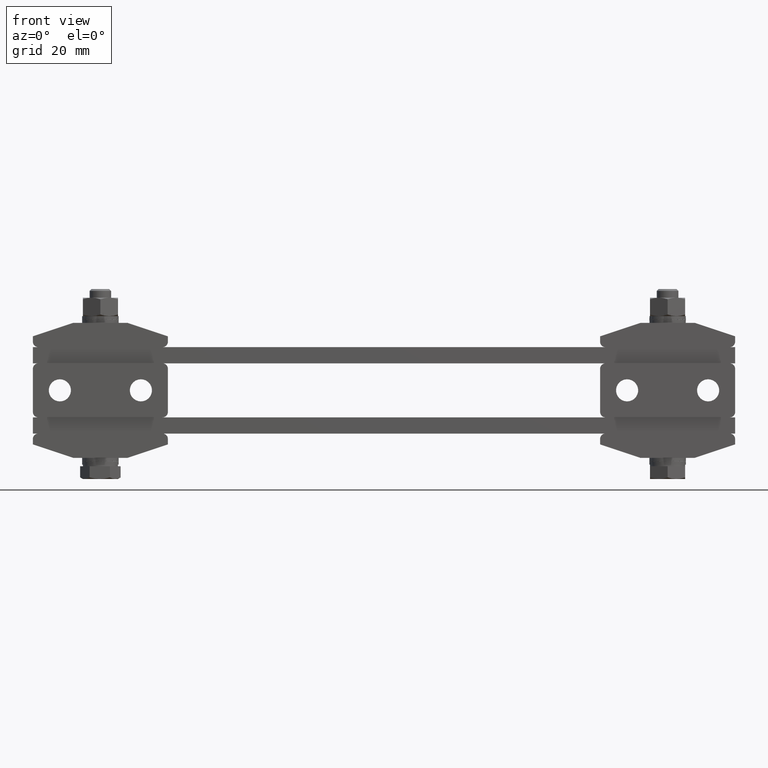
[diagram: clean part render]
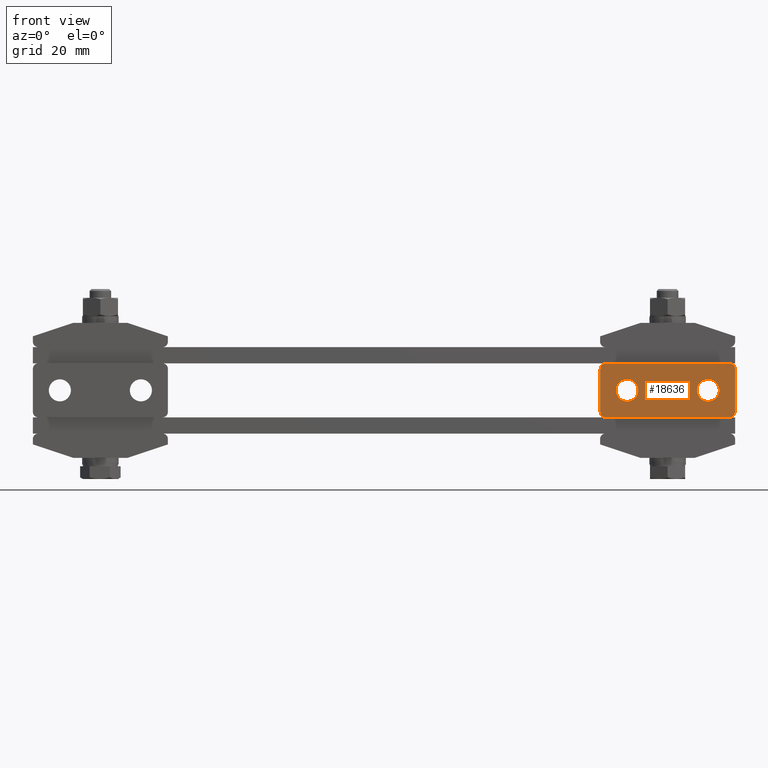
[diagram: same view with one face highlighted and labeled with its STEP entity id]
A machine part, front view. The second image highlights one B-rep face of the part: STEP entity #18636.
In plain terms, the highlighted planar face has unit normal (0, 1, -0).
Its self-contained STEP definition (entity closure, byte-faithful):
#175 = ORIENTED_EDGE ( 'NONE', *, *, #10873, .T. ) ;
#369 = ORIENTED_EDGE ( 'NONE', *, *, #1183, .T. ) ;
#479 = DIRECTION ( 'NONE',  ( 0.0000000000000000000, 0.0000000000000000000, 1.000000000000000000 ) ) ;
#481 = VECTOR ( 'NONE', #4388, 1000.000000000000000 ) ;
#524 = CIRCLE ( 'NONE', #18705, 2.000000000000000000 ) ;
#610 = VERTEX_POINT ( 'NONE', #5053 ) ;
#819 = ORIENTED_EDGE ( 'NONE', *, *, #11375, .T. ) ;
#921 = EDGE_CURVE ( 'NONE', #2988, #14404, #524, .T. ) ;
#1079 = CARTESIAN_POINT ( 'NONE',  ( 80.00000000000000000, -15.50000000000000000, 6.000000000000000000 ) ) ;
#1183 = EDGE_CURVE ( 'NONE', #5373, #2988, #5883, .T. ) ;
#1312 = DIRECTION ( 'NONE',  ( 0.0000000000000000000, 0.0000000000000000000, 1.000000000000000000 ) ) ;
#1361 = ORIENTED_EDGE ( 'NONE', *, *, #20297, .T. ) ;
#1375 = CIRCLE ( 'NONE', #15421, 2.000000000000001800 ) ;
#1602 = EDGE_CURVE ( 'NONE', #610, #17997, #12533, .T. ) ;
#1680 = FACE_BOUND ( 'NONE', #7288, .T. ) ;
#1763 = CIRCLE ( 'NONE', #18886, 4.099999999999999600 ) ;
#1792 = DIRECTION ( 'NONE',  ( 1.000000000000000000, 4.440892098500620200E-016, 0.0000000000000000000 ) ) ;
#1844 = CARTESIAN_POINT ( 'NONE',  ( 80.00000000000000000, -15.50000000000000000, 8.000000000000000000 ) ) ;
#1903 = DIRECTION ( 'NONE',  ( 4.440892098500625200E-016, 1.000000000000000000, 0.0000000000000000000 ) ) ;
#1924 = EDGE_CURVE ( 'NONE', #2547, #9847, #13575, .T. ) ;
#2547 = VERTEX_POINT ( 'NONE', #9001 ) ;
#2565 = CARTESIAN_POINT ( 'NONE',  ( 80.00000000000000000, -15.50000000000000000, 24.00000000000000000 ) ) ;
#2591 = AXIS2_PLACEMENT_3D ( 'NONE', #7696, #7765, #1312 ) ;
#2611 = ORIENTED_EDGE ( 'NONE', *, *, #13438, .T. ) ;
#2679 = ORIENTED_EDGE ( 'NONE', *, *, #20875, .T. ) ;
#2751 = DIRECTION ( 'NONE',  ( 0.0000000000000000000, 0.0000000000000000000, 1.000000000000000000 ) ) ;
#2828 = EDGE_CURVE ( 'NONE', #6930, #4774, #13519, .T. ) ;
#2890 = DIRECTION ( 'NONE',  ( -4.440892098500625200E-016, -1.000000000000000000, -0.0000000000000000000 ) ) ;
#2937 = CARTESIAN_POINT ( 'NONE',  ( 82.00000000000000000, -15.50000000000000000, 6.000000000000000000 ) ) ;
#2965 = FACE_BOUND ( 'NONE', #8253, .T. ) ;
#2988 = VERTEX_POINT ( 'NONE', #1844 ) ;
#3037 = LINE ( 'NONE', #1079, #481 ) ;
#3276 = DIRECTION ( 'NONE',  ( 0.0000000000000000000, 0.0000000000000000000, -1.000000000000000000 ) ) ;
#3645 = VERTEX_POINT ( 'NONE', #10000 ) ;
#3718 = DIRECTION ( 'NONE',  ( 0.0000000000000000000, 0.0000000000000000000, 1.000000000000000000 ) ) ;
#3868 = CIRCLE ( 'NONE', #9642, 4.099999999999999600 ) ;
#3914 = CARTESIAN_POINT ( 'NONE',  ( 120.0000000000000000, -15.50000000000000000, 16.00000000000000000 ) ) ;
#4388 = DIRECTION ( 'NONE',  ( 1.000000000000000000, 4.440892098500620200E-016, 0.0000000000000000000 ) ) ;
#4774 = VERTEX_POINT ( 'NONE', #7346 ) ;
#5041 = AXIS2_PLACEMENT_3D ( 'NONE', #20240, #8843, #479 ) ;
#5053 = CARTESIAN_POINT ( 'NONE',  ( 82.00000000000000000, -15.50000000000000000, 26.00000000000000000 ) ) ;
#5373 = VERTEX_POINT ( 'NONE', #2565 ) ;
#5883 = LINE ( 'NONE', #10554, #15662 ) ;
#5885 = CARTESIAN_POINT ( 'NONE',  ( 128.0000000000000000, -15.50000000000000000, 26.00000000000000000 ) ) ;
#6496 = CARTESIAN_POINT ( 'NONE',  ( 130.0000000000000000, -15.50000000000000000, 26.00000000000000000 ) ) ;
#6511 = CARTESIAN_POINT ( 'NONE',  ( 130.0000000000000000, -15.50000000000000000, 24.00000000000000000 ) ) ;
#6930 = VERTEX_POINT ( 'NONE', #6511 ) ;
#7288 = EDGE_LOOP ( 'NONE', ( #2611, #11950 ) ) ;
#7346 = CARTESIAN_POINT ( 'NONE',  ( 130.0000000000000000, -15.50000000000000000, 8.000000000000000000 ) ) ;
#7359 = CARTESIAN_POINT ( 'NONE',  ( 82.00000000000000000, -15.50000000000000000, 8.000000000000000000 ) ) ;
#7696 = CARTESIAN_POINT ( 'NONE',  ( 120.0000000000000000, -15.50000000000000000, 16.00000000000000000 ) ) ;
#7765 = DIRECTION ( 'NONE',  ( 4.440892098500625200E-016, 1.000000000000000000, 0.0000000000000000000 ) ) ;
#7931 = EDGE_CURVE ( 'NONE', #610, #5373, #1375, .T. ) ;
#8253 = EDGE_LOOP ( 'NONE', ( #175, #819 ) ) ;
#8843 = DIRECTION ( 'NONE',  ( -4.440892098500625200E-016, -1.000000000000000000, -0.0000000000000000000 ) ) ;
#8888 = CARTESIAN_POINT ( 'NONE',  ( 128.0000000000000000, -15.50000000000000000, 24.00000000000000000 ) ) ;
#9001 = CARTESIAN_POINT ( 'NONE',  ( 120.0000000000000000, -15.50000000000000000, 11.90000000000000000 ) ) ;
#9642 = AXIS2_PLACEMENT_3D ( 'NONE', #16975, #16911, #3718 ) ;
#9771 = ORIENTED_EDGE ( 'NONE', *, *, #921, .T. ) ;
#9847 = VERTEX_POINT ( 'NONE', #16675 ) ;
#10000 = CARTESIAN_POINT ( 'NONE',  ( 90.00000000000000000, -15.50000000000000000, 20.10000000000000100 ) ) ;
#10052 = PLANE ( 'NONE',  #19978 ) ;
#10137 = DIRECTION ( 'NONE',  ( 0.0000000000000000000, 0.0000000000000000000, 1.000000000000000000 ) ) ;
#10276 = DIRECTION ( 'NONE',  ( 0.0000000000000000000, 0.0000000000000000000, 1.000000000000000000 ) ) ;
#10315 = DIRECTION ( 'NONE',  ( -4.440892098500625200E-016, -1.000000000000000000, -0.0000000000000000000 ) ) ;
#10554 = CARTESIAN_POINT ( 'NONE',  ( 80.00000000000000000, -15.50000000000000000, 26.00000000000000000 ) ) ;
#10873 = EDGE_CURVE ( 'NONE', #3645, #15380, #3868, .T. ) ;
#11375 = EDGE_CURVE ( 'NONE', #15380, #3645, #1763, .T. ) ;
#11610 = CIRCLE ( 'NONE', #15231, 2.000000000000001800 ) ;
#11665 = EDGE_CURVE ( 'NONE', #14404, #20468, #3037, .T. ) ;
#11725 = CARTESIAN_POINT ( 'NONE',  ( 90.00000000000000000, -15.50000000000000000, 16.00000000000000000 ) ) ;
#11730 = CARTESIAN_POINT ( 'NONE',  ( 80.00000000000000000, -15.50000000000000000, 26.00000000000000000 ) ) ;
#11766 = VECTOR ( 'NONE', #1792, 1000.000000000000000 ) ;
#11950 = ORIENTED_EDGE ( 'NONE', *, *, #1924, .T. ) ;
#11954 = ORIENTED_EDGE ( 'NONE', *, *, #2828, .F. ) ;
#12238 = CARTESIAN_POINT ( 'NONE',  ( 128.0000000000000000, -15.50000000000000000, 6.000000000000000000 ) ) ;
#12533 = LINE ( 'NONE', #14928, #11766 ) ;
#13257 = ORIENTED_EDGE ( 'NONE', *, *, #11665, .T. ) ;
#13438 = EDGE_CURVE ( 'NONE', #9847, #2547, #19627, .T. ) ;
#13519 = LINE ( 'NONE', #6496, #15069 ) ;
#13575 = CIRCLE ( 'NONE', #13936, 4.099999999999999600 ) ;
#13936 = AXIS2_PLACEMENT_3D ( 'NONE', #3914, #16964, #10276 ) ;
#14404 = VERTEX_POINT ( 'NONE', #2937 ) ;
#14532 = EDGE_LOOP ( 'NONE', ( #13257, #1361, #11954, #2679, #14796, #15764, #369, #9771 ) ) ;
#14796 = ORIENTED_EDGE ( 'NONE', *, *, #1602, .F. ) ;
#14928 = CARTESIAN_POINT ( 'NONE',  ( 80.00000000000000000, -15.50000000000000000, 26.00000000000000000 ) ) ;
#15069 = VECTOR ( 'NONE', #3276, 1000.000000000000000 ) ;
#15164 = DIRECTION ( 'NONE',  ( 0.0000000000000000000, 0.0000000000000000000, 1.000000000000000000 ) ) ;
#15231 = AXIS2_PLACEMENT_3D ( 'NONE', #8888, #10315, #15373 ) ;
#15248 = DIRECTION ( 'NONE',  ( 4.440892098500625200E-016, 1.000000000000000000, -0.0000000000000000000 ) ) ;
#15373 = DIRECTION ( 'NONE',  ( 0.0000000000000000000, 0.0000000000000000000, 1.000000000000000000 ) ) ;
#15380 = VERTEX_POINT ( 'NONE', #17171 ) ;
#15421 = AXIS2_PLACEMENT_3D ( 'NONE', #16451, #2890, #15950 ) ;
#15662 = VECTOR ( 'NONE', #20226, 1000.000000000000000 ) ;
#15764 = ORIENTED_EDGE ( 'NONE', *, *, #7931, .T. ) ;
#15950 = DIRECTION ( 'NONE',  ( 0.0000000000000000000, 0.0000000000000000000, 1.000000000000000000 ) ) ;
#16451 = CARTESIAN_POINT ( 'NONE',  ( 82.00000000000000000, -15.50000000000000000, 24.00000000000000000 ) ) ;
#16675 = CARTESIAN_POINT ( 'NONE',  ( 120.0000000000000000, -15.50000000000000000, 20.10000000000000100 ) ) ;
#16911 = DIRECTION ( 'NONE',  ( 4.440892098500625200E-016, 1.000000000000000000, 0.0000000000000000000 ) ) ;
#16964 = DIRECTION ( 'NONE',  ( 4.440892098500625200E-016, 1.000000000000000000, 0.0000000000000000000 ) ) ;
#16975 = CARTESIAN_POINT ( 'NONE',  ( 90.00000000000000000, -15.50000000000000000, 16.00000000000000000 ) ) ;
#17171 = CARTESIAN_POINT ( 'NONE',  ( 90.00000000000000000, -15.50000000000000000, 11.90000000000000000 ) ) ;
#17997 = VERTEX_POINT ( 'NONE', #5885 ) ;
#18636 = ADVANCED_FACE ( 'NONE', ( #2965, #1680, #20155 ), #10052, .F. ) ;
#18705 = AXIS2_PLACEMENT_3D ( 'NONE', #7359, #18895, #2751 ) ;
#18886 = AXIS2_PLACEMENT_3D ( 'NONE', #11725, #1903, #15164 ) ;
#18895 = DIRECTION ( 'NONE',  ( -4.440892098500625200E-016, -1.000000000000000000, -0.0000000000000000000 ) ) ;
#19627 = CIRCLE ( 'NONE', #2591, 4.099999999999999600 ) ;
#19852 = CIRCLE ( 'NONE', #5041, 2.000000000000000000 ) ;
#19978 = AXIS2_PLACEMENT_3D ( 'NONE', #11730, #15248, #10137 ) ;
#20155 = FACE_OUTER_BOUND ( 'NONE', #14532, .T. ) ;
#20226 = DIRECTION ( 'NONE',  ( 0.0000000000000000000, 0.0000000000000000000, -1.000000000000000000 ) ) ;
#20240 = CARTESIAN_POINT ( 'NONE',  ( 128.0000000000000000, -15.50000000000000000, 8.000000000000000000 ) ) ;
#20297 = EDGE_CURVE ( 'NONE', #20468, #4774, #19852, .T. ) ;
#20468 = VERTEX_POINT ( 'NONE', #12238 ) ;
#20875 = EDGE_CURVE ( 'NONE', #6930, #17997, #11610, .T. ) ;